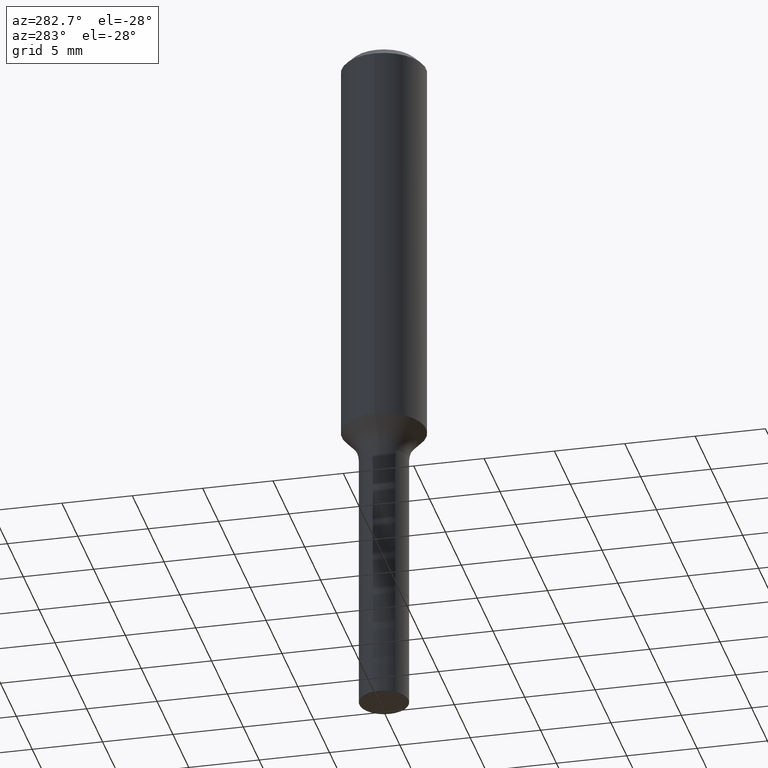
[diagram: clean part render]
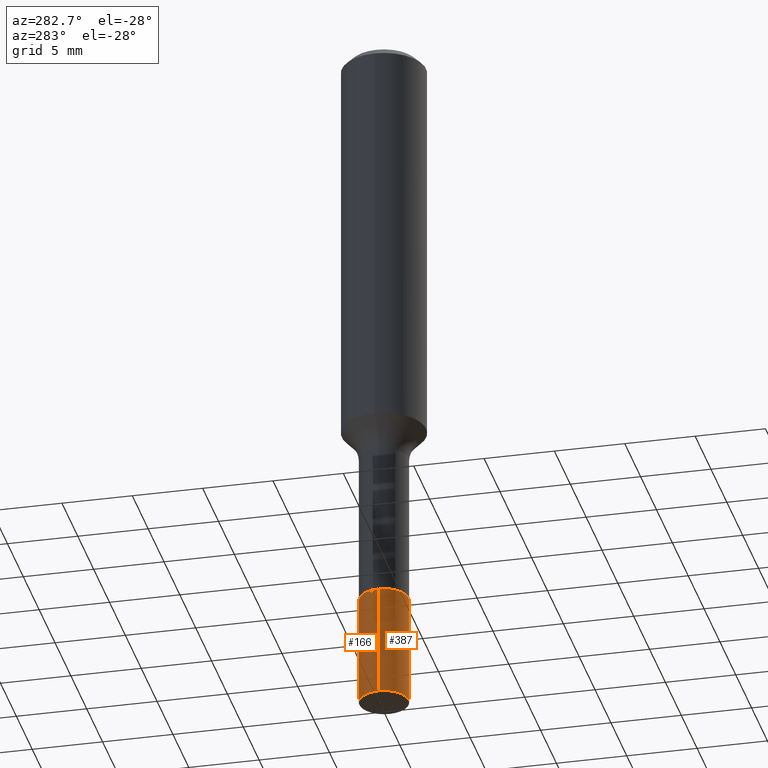
[diagram: same view with one multi-face feature highlighted, each face labeled with its STEP entity id]
A machine part, auxiliary view. The highlighted faces form ONE feature: a constant-radius fillet chain: 2 tangent blend faces with common blend radius 1.7501 mm. The faces share edges in the B-rep.
Their STEP definitions:
[1] entity #387 (Cylinder):
#1 = ORIENTED_EDGE ( 'NONE', *, *, #37, .F. ) ;
#37 = EDGE_CURVE ( 'NONE', #275, #219, #176, .T. ) ;
#38 = ORIENTED_EDGE ( 'NONE', *, *, #203, .T. ) ;
#43 = FACE_OUTER_BOUND ( 'NONE', #422, .T. ) ;
#45 = CYLINDRICAL_SURFACE ( 'NONE', #149, 0.06890000000000007230 ) ;
#55 = CARTESIAN_POINT ( 'NONE',  ( 4.813905344975441835E-29, -6.872981015512731707E-15, -1.968500000000000139 ) ) ;
#64 = DIRECTION ( 'NONE',  ( 1.000000000000000000, -6.982962677686267499E-15, 0.000000000000000000 ) ) ;
#83 = DIRECTION ( 'NONE',  ( -2.445468806185136597E-29, 3.491481338843145583E-15, 1.000000000000000000 ) ) ;
#90 = ORIENTED_EDGE ( 'NONE', *, *, #182, .T. ) ;
#103 = VECTOR ( 'NONE', #497, 39.37007874015748143 ) ;
#146 = DIRECTION ( 'NONE',  ( -2.445468806185136597E-29, 3.491481338843145583E-15, 1.000000000000000000 ) ) ;
#149 = AXIS2_PLACEMENT_3D ( 'NONE', #262, #83, #253 ) ;
#167 = DIRECTION ( 'NONE',  ( -2.445468806185136597E-29, 3.491481338843145583E-15, 1.000000000000000000 ) ) ;
#176 = LINE ( 'NONE', #469, #103 ) ;
#182 = EDGE_CURVE ( 'NONE', #275, #449, #328, .T. ) ;
#198 = VECTOR ( 'NONE', #470, 39.37007874015748143 ) ;
#203 = EDGE_CURVE ( 'NONE', #449, #329, #319, .T. ) ;
#219 = VERTEX_POINT ( 'NONE', #428 ) ;
#220 = CARTESIAN_POINT ( 'NONE',  ( 0.06890000000000000291, -6.254290522269724810E-15, -1.653499999999999970 ) ) ;
#243 = CARTESIAN_POINT ( 'NONE',  ( -0.06890000000000012781, -5.833508759706226453E-15, -1.968500000000000139 ) ) ;
#253 = DIRECTION ( 'NONE',  ( 1.000000000000000000, -6.982962677686273021E-15, 0.000000000000000000 ) ) ;
#262 = CARTESIAN_POINT ( 'NONE',  ( 4.043582671027123201E-29, -5.773164393777141072E-15, -1.653499999999999970 ) ) ;
#273 = CIRCLE ( 'NONE', #384, 0.06890000000000000291 ) ;
#275 = VERTEX_POINT ( 'NONE', #243 ) ;
#281 = AXIS2_PLACEMENT_3D ( 'NONE', #55, #146, #64 ) ;
#319 = LINE ( 'NONE', #495, #198 ) ;
#328 = CIRCLE ( 'NONE', #281, 0.06890000000000012781 ) ;
#329 = VERTEX_POINT ( 'NONE', #220 ) ;
#375 = EDGE_CURVE ( 'NONE', #219, #329, #273, .T. ) ;
#384 = AXIS2_PLACEMENT_3D ( 'NONE', #457, #167, #416 ) ;
#387 = ADVANCED_FACE ( 'NONE', ( #43 ), #45, .T. ) ;
#416 = DIRECTION ( 'NONE',  ( 1.000000000000000000, -6.982962677686265922E-15, 0.000000000000000000 ) ) ;
#422 = EDGE_LOOP ( 'NONE', ( #1, #90, #38, #464 ) ) ;
#428 = CARTESIAN_POINT ( 'NONE',  ( -0.06890000000000000291, -5.833508759706227242E-15, -1.653499999999999970 ) ) ;
#449 = VERTEX_POINT ( 'NONE', #484 ) ;
#457 = CARTESIAN_POINT ( 'NONE',  ( 4.043582671027123201E-29, -5.773164393777141072E-15, -1.653499999999999970 ) ) ;
#464 = ORIENTED_EDGE ( 'NONE', *, *, #375, .F. ) ;
#469 = CARTESIAN_POINT ( 'NONE',  ( -0.06890000000000007230, -5.283600448838431530E-15, -1.653499999999999970 ) ) ;
#470 = DIRECTION ( 'NONE',  ( -2.445468806185136877E-29, 3.491481338843145188E-15, 1.000000000000000000 ) ) ;
#484 = CARTESIAN_POINT ( 'NONE',  ( 0.06890000000000012781, -7.354107144005317023E-15, -1.968500000000000139 ) ) ;
#495 = CARTESIAN_POINT ( 'NONE',  ( 0.06890000000000007230, -6.254290522269725599E-15, -1.653499999999999970 ) ) ;
#497 = DIRECTION ( 'NONE',  ( -2.445468806185136877E-29, 3.491481338843145188E-15, 1.000000000000000000 ) ) ;
[2] entity #166 (Cylinder):
#5 = ORIENTED_EDGE ( 'NONE', *, *, #37, .T. ) ;
#32 = AXIS2_PLACEMENT_3D ( 'NONE', #53, #488, #212 ) ;
#37 = EDGE_CURVE ( 'NONE', #275, #219, #176, .T. ) ;
#44 = ORIENTED_EDGE ( 'NONE', *, *, #203, .F. ) ;
#52 = DIRECTION ( 'NONE',  ( -2.445468806185136597E-29, 3.491481338843145583E-15, 1.000000000000000000 ) ) ;
#53 = CARTESIAN_POINT ( 'NONE',  ( 4.813905344975441835E-29, -6.872981015512731707E-15, -1.968500000000000139 ) ) ;
#97 = ORIENTED_EDGE ( 'NONE', *, *, #394, .T. ) ;
#103 = VECTOR ( 'NONE', #497, 39.37007874015748143 ) ;
#140 = FACE_OUTER_BOUND ( 'NONE', #364, .T. ) ;
#158 = CIRCLE ( 'NONE', #32, 0.06890000000000012781 ) ;
#166 = ADVANCED_FACE ( 'NONE', ( #140 ), #350, .T. ) ;
#176 = LINE ( 'NONE', #469, #103 ) ;
#179 = DIRECTION ( 'NONE',  ( 1.000000000000000000, -6.982962677686265922E-15, 0.000000000000000000 ) ) ;
#187 = CARTESIAN_POINT ( 'NONE',  ( 4.043582671027123201E-29, -5.773164393777141072E-15, -1.653499999999999970 ) ) ;
#196 = EDGE_CURVE ( 'NONE', #329, #219, #246, .T. ) ;
#198 = VECTOR ( 'NONE', #470, 39.37007874015748143 ) ;
#203 = EDGE_CURVE ( 'NONE', #449, #329, #319, .T. ) ;
#208 = AXIS2_PLACEMENT_3D ( 'NONE', #266, #52, #272 ) ;
#212 = DIRECTION ( 'NONE',  ( 1.000000000000000000, -6.982962677686267499E-15, 0.000000000000000000 ) ) ;
#219 = VERTEX_POINT ( 'NONE', #428 ) ;
#220 = CARTESIAN_POINT ( 'NONE',  ( 0.06890000000000000291, -6.254290522269724810E-15, -1.653499999999999970 ) ) ;
#243 = CARTESIAN_POINT ( 'NONE',  ( -0.06890000000000012781, -5.833508759706226453E-15, -1.968500000000000139 ) ) ;
#246 = CIRCLE ( 'NONE', #493, 0.06890000000000000291 ) ;
#266 = CARTESIAN_POINT ( 'NONE',  ( 4.043582671027123201E-29, -5.773164393777141072E-15, -1.653499999999999970 ) ) ;
#272 = DIRECTION ( 'NONE',  ( 1.000000000000000000, -6.982962677686273021E-15, 0.000000000000000000 ) ) ;
#275 = VERTEX_POINT ( 'NONE', #243 ) ;
#319 = LINE ( 'NONE', #495, #198 ) ;
#329 = VERTEX_POINT ( 'NONE', #220 ) ;
#350 = CYLINDRICAL_SURFACE ( 'NONE', #208, 0.06890000000000007230 ) ;
#364 = EDGE_LOOP ( 'NONE', ( #97, #5, #424, #44 ) ) ;
#383 = DIRECTION ( 'NONE',  ( -2.445468806185136597E-29, 3.491481338843145583E-15, 1.000000000000000000 ) ) ;
#394 = EDGE_CURVE ( 'NONE', #449, #275, #158, .T. ) ;
#424 = ORIENTED_EDGE ( 'NONE', *, *, #196, .F. ) ;
#428 = CARTESIAN_POINT ( 'NONE',  ( -0.06890000000000000291, -5.833508759706227242E-15, -1.653499999999999970 ) ) ;
#449 = VERTEX_POINT ( 'NONE', #484 ) ;
#469 = CARTESIAN_POINT ( 'NONE',  ( -0.06890000000000007230, -5.283600448838431530E-15, -1.653499999999999970 ) ) ;
#470 = DIRECTION ( 'NONE',  ( -2.445468806185136877E-29, 3.491481338843145188E-15, 1.000000000000000000 ) ) ;
#484 = CARTESIAN_POINT ( 'NONE',  ( 0.06890000000000012781, -7.354107144005317023E-15, -1.968500000000000139 ) ) ;
#488 = DIRECTION ( 'NONE',  ( -2.445468806185136597E-29, 3.491481338843145583E-15, 1.000000000000000000 ) ) ;
#493 = AXIS2_PLACEMENT_3D ( 'NONE', #187, #383, #179 ) ;
#495 = CARTESIAN_POINT ( 'NONE',  ( 0.06890000000000007230, -6.254290522269725599E-15, -1.653499999999999970 ) ) ;
#497 = DIRECTION ( 'NONE',  ( -2.445468806185136877E-29, 3.491481338843145188E-15, 1.000000000000000000 ) ) ;